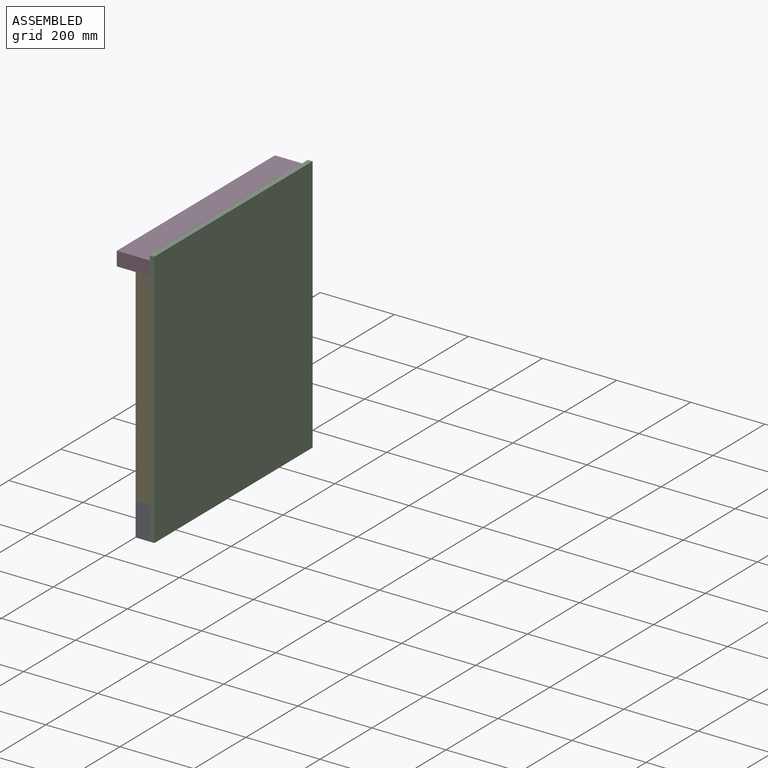
[diagram: assembled view]
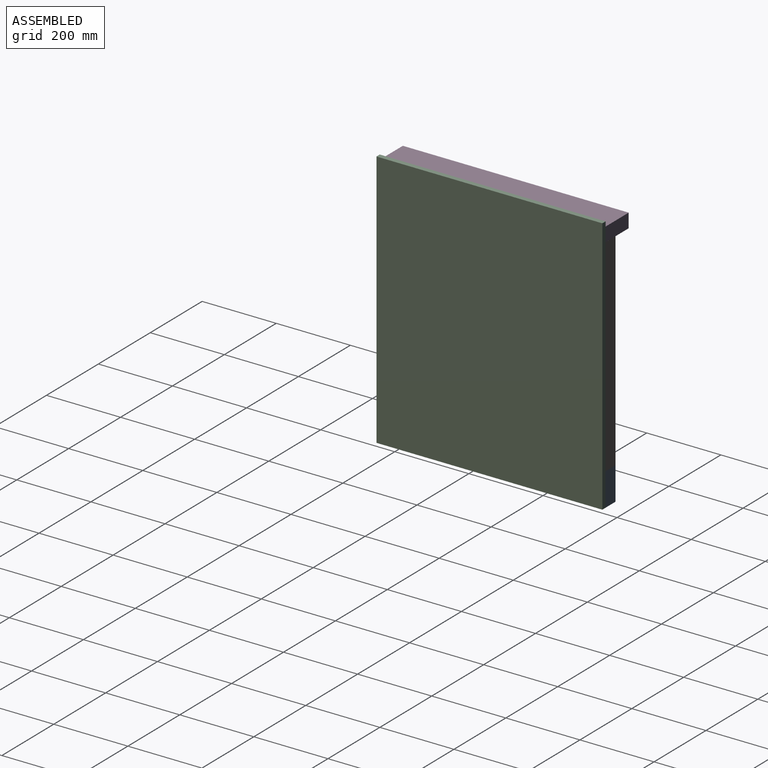
[diagram: assembled view, second angle]
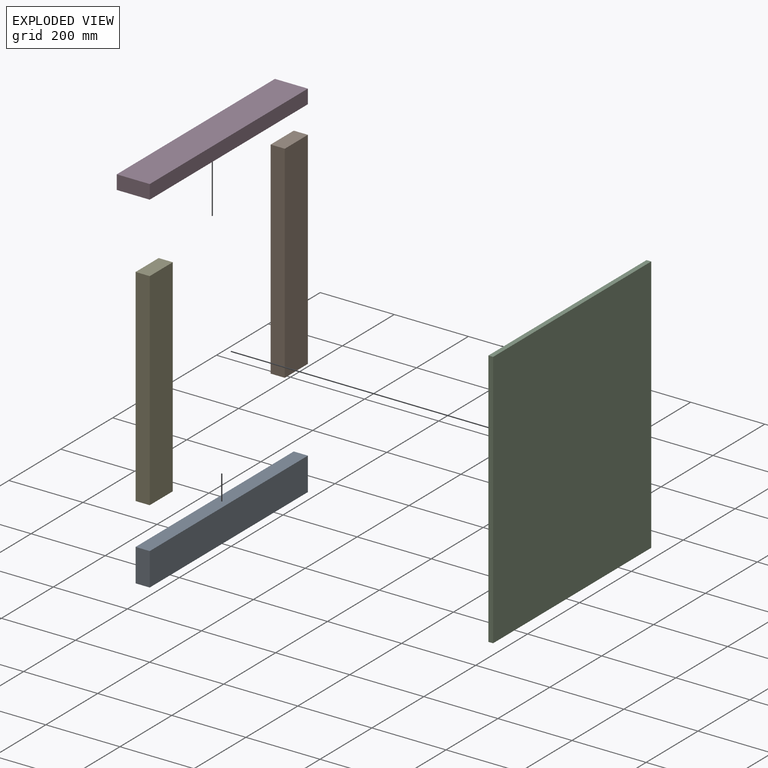
[diagram: exploded view]
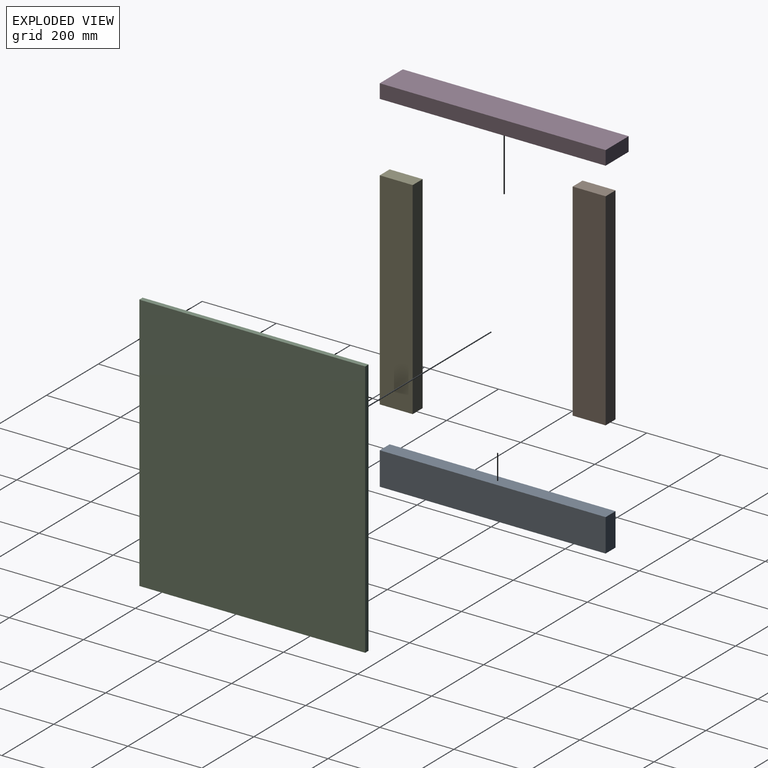
[diagram: exploded view, second angle]
ASSEMBLY  parts=5 mates=4
PART A: 6 faces, bbox 38.1x609.6x88.9 mm
  f0: plane 609.6x38.1mm, normal (0,0,-1), area 23225.8mm2, adj f1,f3,f4,f5
  f1: plane 609.6x88.9mm, normal (1,0,0), area 54193.4mm2, adj f0,f2,f4,f5
  f2: plane 609.6x38.1mm, normal (0,0,1), area 23225.8mm2, adj f1,f3,f4,f5
  f3: plane 609.6x88.9mm, normal (-1,0,0), area 54193.4mm2, adj f0,f2,f4,f5
  f4: plane 88.9x38.1mm, normal (0,-1,0), area 3387.1mm2, adj f0,f1,f2,f3
  f5: plane 88.9x38.1mm, normal (0,1,0), area 3387.1mm2, adj f0,f1,f2,f3
PART B: 6 faces, bbox 38.1x88.9x558.8 mm
  f0: plane 558.8x38.1mm, normal (0,-1,0), area 21290.3mm2, adj f1,f3,f4,f5
  f1: plane 558.8x88.9mm, normal (1,0,0), area 49677.3mm2, adj f0,f2,f4,f5
  f2: plane 558.8x38.1mm, normal (0,1,0), area 21290.3mm2, adj f1,f3,f4,f5
  f3: plane 558.8x88.9mm, normal (-1,0,0), area 49677.3mm2, adj f0,f2,f4,f5
  f4: plane 88.9x38.1mm, normal (0,0,1), area 3387.1mm2, adj f0,f1,f2,f3
  f5: plane 88.9x38.1mm, normal (0,0,-1), area 3387.1mm2, adj f0,f1,f2,f3
PART C: 6 faces, bbox 12.7x609.6x698.5 mm
  f0: plane 609.6x12.7mm, normal (0,0,-1), area 7741.9mm2, adj f1,f3,f4,f5
  f1: plane 698.5x12.7mm, normal (0,1,0), area 8870.9mm2, adj f0,f2,f4,f5
  f2: plane 609.6x12.7mm, normal (0,0,1), area 7741.9mm2, adj f1,f3,f4,f5
  f3: plane 698.5x12.7mm, normal (0,-1,0), area 8870.9mm2, adj f0,f2,f4,f5
  f4: plane 698.5x609.6mm, normal (1,0,0), area 425805.6mm2, adj f0,f1,f2,f3
  f5: plane 698.5x609.6mm, normal (-1,0,0), area 425805.6mm2, adj f0,f1,f2,f3
PART D: same geometry as A
PART E: same geometry as B
PLACE A t=(-25.4,304.8,44.45)mm
PLACE B t=(-25.4,260.35,88.9)mm
PLACE C rot(axis=(0,0,1),180deg) t=(6.35,0,349.25)mm
PLACE D rot(axis=(0,1,0),90deg) t=(-50.8,304.8,666.75)mm
PLACE E t=(-25.4,-260.35,88.9)mm
MATE fastened D.f1 <-> E.f4  axis (0,0,-1) through (-6.35,-304.8,647.7)mm
MATE fastened A.f1 <-> C.f4  axis (1,0,0) through (-6.35,-304.8,0)mm
MATE fastened E.f5 <-> A.f2  axis (0,0,-1) through (-25.4,-304.8,88.9)mm
MATE fastened A.f2 <-> B.f5  axis (0,0,1) through (-25.4,304.8,88.9)mm
